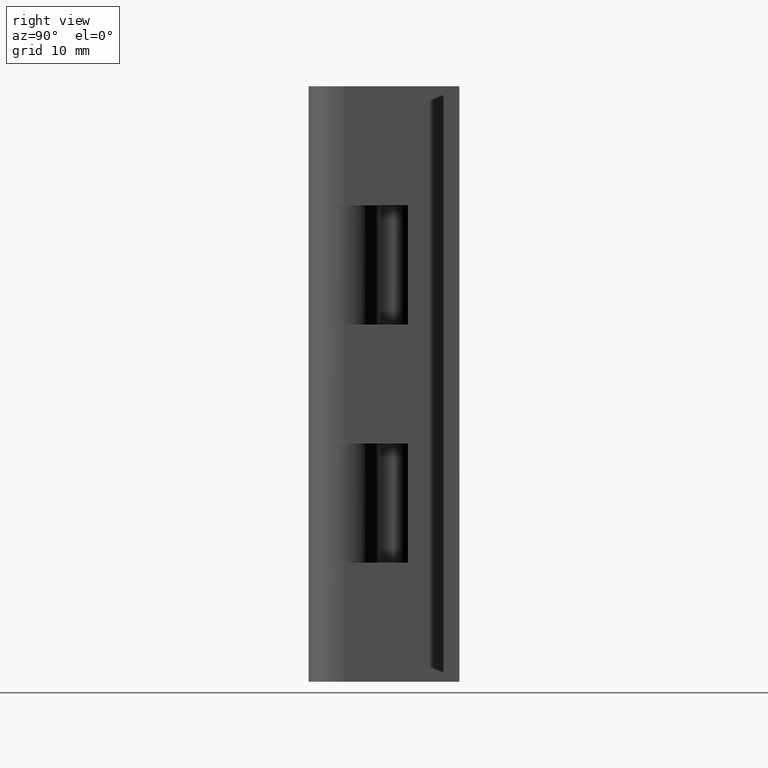
[diagram: clean part render]
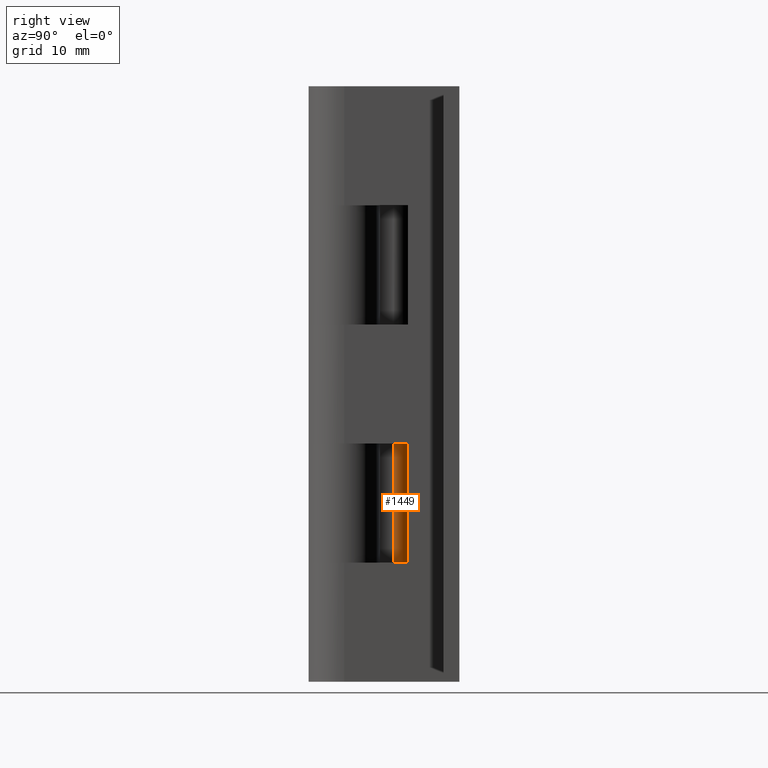
[diagram: same view with one face highlighted and labeled with its STEP entity id]
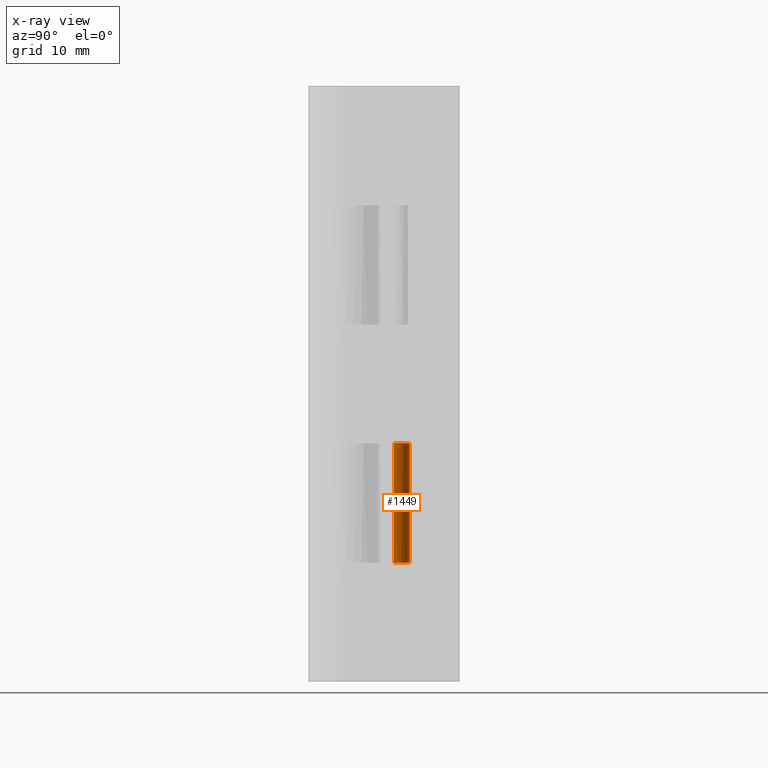
[diagram: x-ray of the same camera — body ghosted, the highlighted face saturated]
A machine part, right view. The second image highlights one B-rep face of the part: STEP entity #1449.
The next image is the same camera in x-ray: the body ghosted, the highlighted face saturated — about 0% of this face is hidden behind the body in this view.
In plain terms, the highlighted face is a freeform B-spline surface patch.
Its self-contained STEP definition (entity closure, byte-faithful):
#911=CARTESIAN_POINT('',(-1.999999999999900,4.999999000000000,24.0));
#912=VERTEX_POINT('',#911);
#918=CARTESIAN_POINT('',(-3.599999999999900,6.599999000000079,24.0));
#919=VERTEX_POINT('',#918);
#920=CARTESIAN_POINT('',(-3.599999999999900,6.599999000000079,24.0));
#921=CARTESIAN_POINT('',(-1.999999999999901,6.599999000000000,23.999999999999996));
#922=CARTESIAN_POINT('',(-1.999999999999900,4.999999000000000,24.0));
#930=(BOUNDED_CURVE()B_SPLINE_CURVE(2,(#920,#921,#922),.UNSPECIFIED.,.F.,.U.)CURVE()GEOMETRIC_REPRESENTATION_ITEM()QUASI_UNIFORM_CURVE()RATIONAL_B_SPLINE_CURVE((1.0,0.707106781186548,1.0))REPRESENTATION_ITEM(''));
#931=EDGE_CURVE('',#919,#912,#930,.T.);
#1124=CARTESIAN_POINT('',(-3.599999999999900,6.599999000000079,12.0));
#1125=VERTEX_POINT('',#1124);
#1131=CARTESIAN_POINT('',(-1.999999999999900,4.999999000000000,12.000000000000121));
#1132=VERTEX_POINT('',#1131);
#1133=CARTESIAN_POINT('',(-1.999999999999900,4.999999000000000,12.000000000000121));
#1134=CARTESIAN_POINT('',(-1.999999999999901,6.599999000000000,12.000000000000121));
#1135=CARTESIAN_POINT('',(-3.599999999999900,6.599999000000079,12.0));
#1143=(BOUNDED_CURVE()B_SPLINE_CURVE(2,(#1133,#1134,#1135),.UNSPECIFIED.,.F.,.U.)CURVE()GEOMETRIC_REPRESENTATION_ITEM()QUASI_UNIFORM_CURVE()RATIONAL_B_SPLINE_CURVE((1.0,0.707106781186548,1.0))REPRESENTATION_ITEM(''));
#1144=EDGE_CURVE('',#1132,#1125,#1143,.T.);
#1421=CARTESIAN_POINT('',(-2.000548280039009,4.958115882707403,24.300000000000001));
#1422=CARTESIAN_POINT('',(-2.000548280039009,4.958115882707403,11.692500000000001));
#1423=CARTESIAN_POINT('',(-1.954412383798210,6.719974678430935,24.299999999999997));
#1424=CARTESIAN_POINT('',(-1.954412383798210,6.719974678430935,11.692499999999999));
#1425=CARTESIAN_POINT('',(-3.712512118786433,6.596038167165443,24.300000000000008));
#1426=CARTESIAN_POINT('',(-3.712512118786433,6.596038167165443,11.692500000000003));
#1434=(BOUNDED_SURFACE()B_SPLINE_SURFACE(1,2,((#1421,#1423,#1425),(#1422,#1424,#1426)),.UNSPECIFIED.,.F.,.F.,.U.)B_SPLINE_SURFACE_WITH_KNOTS((2,2),(3,3),(0.0,12.607500000000011),(0.0,2.833827747884553),.UNSPECIFIED.)GEOMETRIC_REPRESENTATION_ITEM()RATIONAL_B_SPLINE_SURFACE(((1.0,0.670944223462606,0.996392648000179),(1.0,0.670944223462606,0.996392648000179)))REPRESENTATION_ITEM('')SURFACE());
#1435=CARTESIAN_POINT('',(-3.599999999999900,6.599999000000079,24.0));
#1436=CARTESIAN_POINT('',(-3.599999999999900,6.599999000000079,12.0));
#1437=QUASI_UNIFORM_CURVE('',1,(#1435,#1436),.UNSPECIFIED.,.F.,.U.);
#1438=EDGE_CURVE('',#919,#1125,#1437,.T.);
#1439=ORIENTED_EDGE('',*,*,#1438,.F.);
#1440=ORIENTED_EDGE('',*,*,#931,.T.);
#1441=CARTESIAN_POINT('',(-1.999999999999900,4.999999000000000,12.000000000000121));
#1442=CARTESIAN_POINT('',(-1.999999999999900,4.999999000000000,24.0));
#1443=QUASI_UNIFORM_CURVE('',1,(#1441,#1442),.UNSPECIFIED.,.F.,.U.);
#1444=EDGE_CURVE('',#1132,#912,#1443,.T.);
#1445=ORIENTED_EDGE('',*,*,#1444,.F.);
#1446=ORIENTED_EDGE('',*,*,#1144,.T.);
#1447=EDGE_LOOP('',(#1439,#1440,#1445,#1446));
#1448=FACE_OUTER_BOUND('',#1447,.T.);
#1449=ADVANCED_FACE('',(#1448),#1434,.T.);